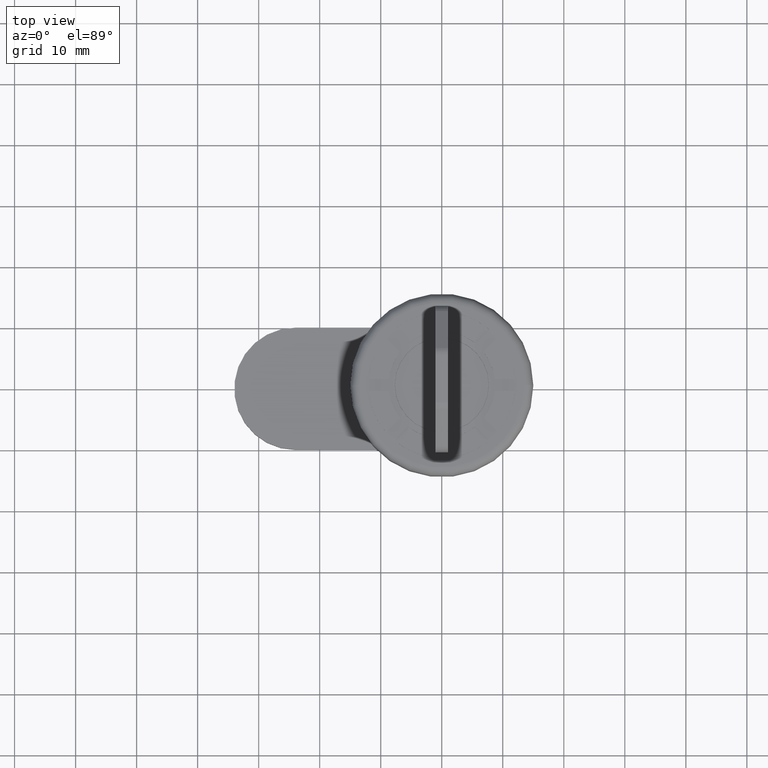
[diagram: clean part render]
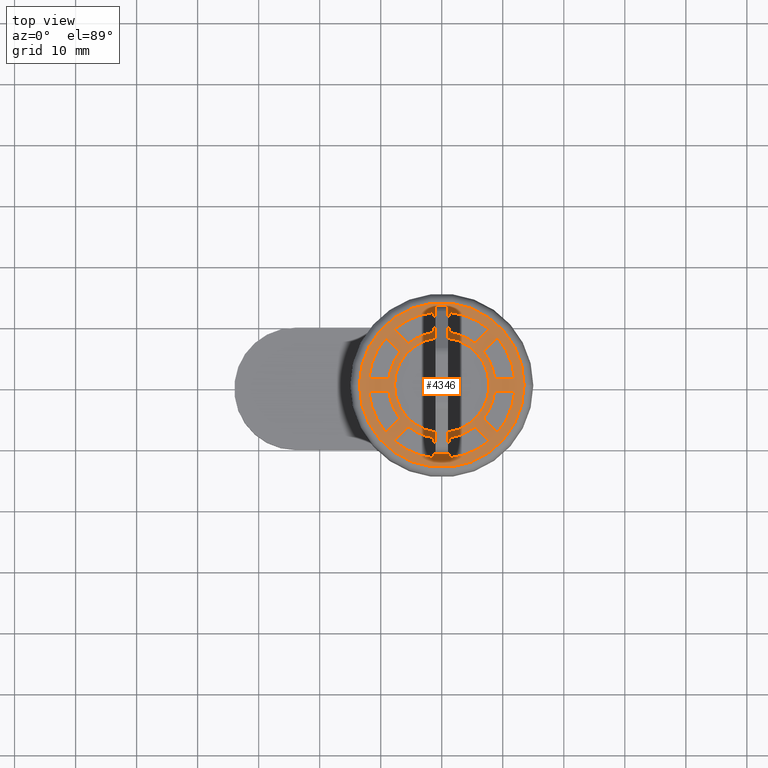
[diagram: same view with one face highlighted and labeled with its STEP entity id]
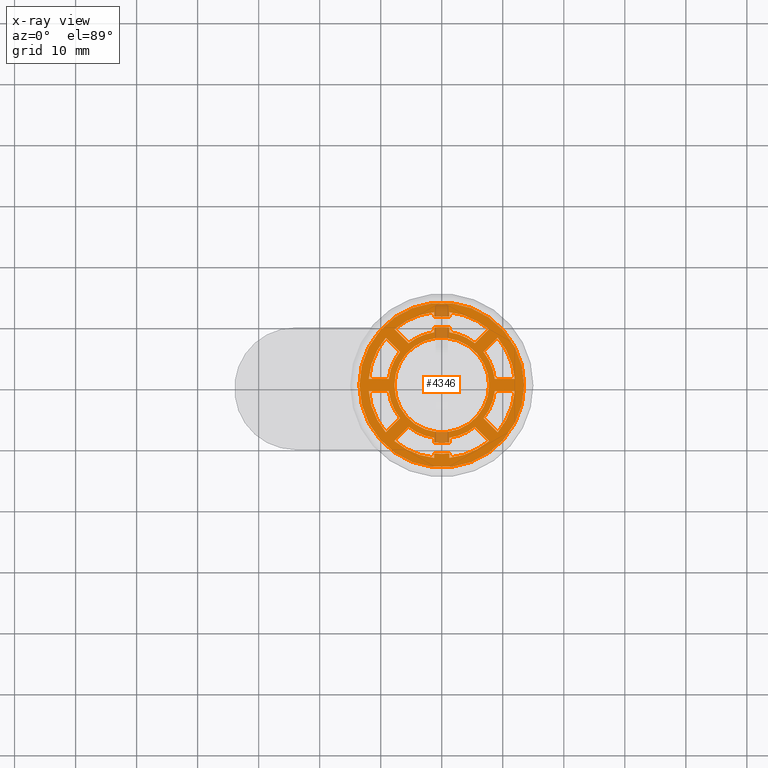
[diagram: x-ray of the same camera — body ghosted, the highlighted face saturated]
A machine part, top view. The second image highlights one B-rep face of the part: STEP entity #4346.
The next image is the same camera in x-ray: the body ghosted, the highlighted face saturated — about 5% of this face is hidden behind the body in this view.
In plain terms, the highlighted planar face has unit normal (0, 0, 1).
Its self-contained STEP definition (entity closure, byte-faithful):
#7 = EDGE_CURVE ( 'NONE', #2362, #4896, #3076, .T. ) ;
#23 = ORIENTED_EDGE ( 'NONE', *, *, #81, .T. ) ;
#39 = ORIENTED_EDGE ( 'NONE', *, *, #7615, .F. ) ;
#45 = VECTOR ( 'NONE', #4850, 1000.000000000000000 ) ;
#81 = EDGE_CURVE ( 'NONE', #3226, #7965, #4203, .T. ) ;
#108 = CARTESIAN_POINT ( 'NONE',  ( 0.0000000000000000000, 0.0000000000000000000, 0.0000000000000000000 ) ) ;
#220 = DIRECTION ( 'NONE',  ( 1.000000000000000000, 0.0000000000000000000, 0.0000000000000000000 ) ) ;
#246 = DIRECTION ( 'NONE',  ( 1.000000000000000000, 0.0000000000000000000, 0.0000000000000000000 ) ) ;
#257 = CARTESIAN_POINT ( 'NONE',  ( -9.162874043830470300, 7.748660481457288400, 0.0000000000000000000 ) ) ;
#259 = DIRECTION ( 'NONE',  ( 1.000000000000000000, 0.0000000000000000000, 0.0000000000000000000 ) ) ;
#335 = EDGE_CURVE ( 'NONE', #564, #2362, #6812, .T. ) ;
#337 = CARTESIAN_POINT ( 'NONE',  ( -5.439538645400386200, 6.853752207746949500, 0.0000000000000000000 ) ) ;
#354 = VERTEX_POINT ( 'NONE', #7953 ) ;
#403 = CARTESIAN_POINT ( 'NONE',  ( -1.250000000000220500, -9.417404100918672000, 0.0000000000000000000 ) ) ;
#407 = EDGE_CURVE ( 'NONE', #1545, #4889, #4716, .T. ) ;
#417 = DIRECTION ( 'NONE',  ( -0.0000000000000000000, -0.0000000000000000000, -1.000000000000000000 ) ) ;
#421 = CARTESIAN_POINT ( 'NONE',  ( 1.250000000000220900, 9.417404100918672000, 0.0000000000000000000 ) ) ;
#466 = ORIENTED_EDGE ( 'NONE', *, *, #3230, .F. ) ;
#481 = VERTEX_POINT ( 'NONE', #2942 ) ;
#499 = DIRECTION ( 'NONE',  ( 1.000000000000000000, 0.0000000000000000000, -0.0000000000000000000 ) ) ;
#512 = CARTESIAN_POINT ( 'NONE',  ( 6.853752207758702800, -5.439538645385539400, 0.0000000000000000000 ) ) ;
#513 = FACE_BOUND ( 'NONE', #5650, .T. ) ;
#519 = AXIS2_PLACEMENT_3D ( 'NONE', #3535, #7996, #4199 ) ;
#564 = VERTEX_POINT ( 'NONE', #4996 ) ;
#599 = CARTESIAN_POINT ( 'NONE',  ( 5.439538645397318500, 6.853752207749384000, 0.0000000000000000000 ) ) ;
#617 = CARTESIAN_POINT ( 'NONE',  ( -6.853752207758702800, 5.439538645385539400, 0.0000000000000000000 ) ) ;
#626 = AXIS2_PLACEMENT_3D ( 'NONE', #6406, #2547, #7046 ) ;
#660 = VERTEX_POINT ( 'NONE', #7856 ) ;
#673 = CARTESIAN_POINT ( 'NONE',  ( 8.692669325356856500, 1.000000000000000000, 0.0000000000000000000 ) ) ;
#692 = CARTESIAN_POINT ( 'NONE',  ( -5.439538645400388000, 6.853752207746948600, 0.0000000000000000000 ) ) ;
#696 = DIRECTION ( 'NONE',  ( 1.000000000000000000, 0.0000000000000000000, 0.0000000000000000000 ) ) ;
#721 = DIRECTION ( 'NONE',  ( 0.0000000000000000000, 0.0000000000000000000, 1.000000000000000000 ) ) ;
#726 = EDGE_LOOP ( 'NONE', ( #1582, #4842, #5305, #4109, #5555, #2654, #950, #1470, #7563, #7182, #2047, #6562 ) ) ;
#766 = DIRECTION ( 'NONE',  ( -1.000000000000000000, 0.0000000000000000000, 0.0000000000000000000 ) ) ;
#771 = VECTOR ( 'NONE', #5063, 1000.000000000000000 ) ;
#802 = DIRECTION ( 'NONE',  ( -0.0000000000000000000, -0.0000000000000000000, -1.000000000000000000 ) ) ;
#882 = ORIENTED_EDGE ( 'NONE', *, *, #7382, .F. ) ;
#896 = DIRECTION ( 'NONE',  ( 0.7071067811865505700, 0.7071067811865444600, 0.0000000000000000000 ) ) ;
#938 = DIRECTION ( 'NONE',  ( -0.0000000000000000000, 0.0000000000000000000, 1.000000000000000000 ) ) ;
#950 = ORIENTED_EDGE ( 'NONE', *, *, #407, .T. ) ;
#963 = VERTEX_POINT ( 'NONE', #617 ) ;
#968 = CIRCLE ( 'NONE', #2793, 8.750000000000026600 ) ;
#1013 = EDGE_CURVE ( 'NONE', #7587, #7680, #3887, .T. ) ;
#1030 = CARTESIAN_POINT ( 'NONE',  ( -1.250000000000220900, 9.417404100918672000, 0.0000000000000000000 ) ) ;
#1036 = CARTESIAN_POINT ( 'NONE',  ( -1.250000000000220300, -11.18033988750755000, 0.0000000000000000000 ) ) ;
#1051 = EDGE_CURVE ( 'NONE', #1561, #3437, #7091, .T. ) ;
#1064 = AXIS2_PLACEMENT_3D ( 'NONE', #1193, #5690, #1827 ) ;
#1084 = EDGE_LOOP ( 'NONE', ( #3544, #7256 ) ) ;
#1089 = VERTEX_POINT ( 'NONE', #5022 ) ;
#1096 = CARTESIAN_POINT ( 'NONE',  ( -1.250000000000220900, -9.417404100918672000, 0.0000000000000000000 ) ) ;
#1153 = LINE ( 'NONE', #6663, #7749 ) ;
#1170 = ORIENTED_EDGE ( 'NONE', *, *, #5893, .T. ) ;
#1193 = CARTESIAN_POINT ( 'NONE',  ( 0.0000000000000000000, 0.0000000000000000000, 0.0000000000000000000 ) ) ;
#1215 = VECTOR ( 'NONE', #5749, 1000.000000000000000 ) ;
#1238 = AXIS2_PLACEMENT_3D ( 'NONE', #6567, #2078, #5931 ) ;
#1241 = CARTESIAN_POINT ( 'NONE',  ( -7.748660481471918400, 9.162874043818481700, 0.0000000000000000000 ) ) ;
#1249 = EDGE_CURVE ( 'NONE', #4781, #2544, #3579, .T. ) ;
#1276 = ORIENTED_EDGE ( 'NONE', *, *, #4709, .T. ) ;
#1288 = LINE ( 'NONE', #1780, #6026 ) ;
#1303 = VECTOR ( 'NONE', #4767, 1000.000000000000200 ) ;
#1313 = EDGE_CURVE ( 'NONE', #7965, #6688, #3167, .T. ) ;
#1339 = VECTOR ( 'NONE', #1695, 1000.000000000000100 ) ;
#1341 = CARTESIAN_POINT ( 'NONE',  ( 9.162874043830470300, 7.748660481457288400, 0.0000000000000000000 ) ) ;
#1348 = AXIS2_PLACEMENT_3D ( 'NONE', #1577, #3480, #220 ) ;
#1399 = CARTESIAN_POINT ( 'NONE',  ( 5.439538645397318500, -6.853752207749384000, 0.0000000000000000000 ) ) ;
#1400 = AXIS2_PLACEMENT_3D ( 'NONE', #2432, #6285, #5651 ) ;
#1452 = LINE ( 'NONE', #599, #4477 ) ;
#1470 = ORIENTED_EDGE ( 'NONE', *, *, #1532, .T. ) ;
#1485 = EDGE_CURVE ( 'NONE', #660, #4781, #1760, .T. ) ;
#1532 = EDGE_CURVE ( 'NONE', #4889, #3322, #968, .T. ) ;
#1545 = VERTEX_POINT ( 'NONE', #7307 ) ;
#1561 = VERTEX_POINT ( 'NONE', #7869 ) ;
#1570 = ORIENTED_EDGE ( 'NONE', *, *, #6563, .T. ) ;
#1577 = CARTESIAN_POINT ( 'NONE',  ( 0.0000000000000000000, 0.0000000000000000000, 0.0000000000000000000 ) ) ;
#1582 = ORIENTED_EDGE ( 'NONE', *, *, #6342, .T. ) ;
#1644 = EDGE_CURVE ( 'NONE', #2389, #660, #1853, .T. ) ;
#1654 = CIRCLE ( 'NONE', #5932, 12.00000000000029500 ) ;
#1695 = DIRECTION ( 'NONE',  ( 0.7071067811865474600, -0.7071067811865474600, -0.0000000000000000000 ) ) ;
#1725 = EDGE_CURVE ( 'NONE', #3385, #5760, #4685, .T. ) ;
#1753 = CARTESIAN_POINT ( 'NONE',  ( 8.692669325356856500, -1.000000000000000000, 0.0000000000000000000 ) ) ;
#1760 = LINE ( 'NONE', #3541, #45 ) ;
#1780 = CARTESIAN_POINT ( 'NONE',  ( -8.692669325356856500, -1.000000000000000000, 0.0000000000000000000 ) ) ;
#1790 = EDGE_CURVE ( 'NONE', #1089, #4126, #4285, .T. ) ;
#1817 = AXIS2_PLACEMENT_3D ( 'NONE', #4272, #417, #4930 ) ;
#1827 = DIRECTION ( 'NONE',  ( 1.000000000000000000, 0.0000000000000000000, 0.0000000000000000000 ) ) ;
#1853 = CIRCLE ( 'NONE', #4119, 9.500000000000019500 ) ;
#1861 = CARTESIAN_POINT ( 'NONE',  ( -8.692669325356856500, 1.000000000000000000, 0.0000000000000000000 ) ) ;
#1881 = EDGE_CURVE ( 'NONE', #7479, #2411, #3457, .T. ) ;
#1882 = EDGE_LOOP ( 'NONE', ( #8148, #8188 ) ) ;
#1913 = VERTEX_POINT ( 'NONE', #4802 ) ;
#1946 = EDGE_CURVE ( 'NONE', #6067, #4615, #1153, .T. ) ;
#1948 = LINE ( 'NONE', #1341, #7076 ) ;
#1972 = ORIENTED_EDGE ( 'NONE', *, *, #2399, .T. ) ;
#1994 = DIRECTION ( 'NONE',  ( -0.0000000000000000000, -0.0000000000000000000, -1.000000000000000000 ) ) ;
#2005 = FACE_BOUND ( 'NONE', #726, .T. ) ;
#2022 = CARTESIAN_POINT ( 'NONE',  ( -13.50000000000000000, 1.745121688784978200E-015, 0.0000000000000000000 ) ) ;
#2047 = ORIENTED_EDGE ( 'NONE', *, *, #1485, .T. ) ;
#2078 = DIRECTION ( 'NONE',  ( 0.0000000000000000000, -0.0000000000000000000, 1.000000000000000000 ) ) ;
#2095 = CARTESIAN_POINT ( 'NONE',  ( 0.0000000000000000000, 0.0000000000000000000, 0.0000000000000000000 ) ) ;
#2099 = CARTESIAN_POINT ( 'NONE',  ( -9.162874043830470300, -7.748660481457288400, 0.0000000000000000000 ) ) ;
#2114 = EDGE_CURVE ( 'NONE', #7737, #6067, #1654, .T. ) ;
#2129 = VERTEX_POINT ( 'NONE', #4957 ) ;
#2139 = CARTESIAN_POINT ( 'NONE',  ( 8.692669325356856500, -1.000000000000000000, 0.0000000000000000000 ) ) ;
#2201 = CARTESIAN_POINT ( 'NONE',  ( -9.162874043830470300, -7.748660481457288400, 0.0000000000000000000 ) ) ;
#2203 = VERTEX_POINT ( 'NONE', #5281 ) ;
#2210 = FACE_OUTER_BOUND ( 'NONE', #1882, .T. ) ;
#2212 = CARTESIAN_POINT ( 'NONE',  ( -1.250000000000220300, 11.18033988750755000, 0.0000000000000000000 ) ) ;
#2256 = ORIENTED_EDGE ( 'NONE', *, *, #3881, .F. ) ;
#2260 = CARTESIAN_POINT ( 'NONE',  ( -1.250000000000220900, -8.660254037844382000, 0.0000000000000000000 ) ) ;
#2270 = DIRECTION ( 'NONE',  ( -0.0000000000000000000, -0.0000000000000000000, -1.000000000000000000 ) ) ;
#2304 = CARTESIAN_POINT ( 'NONE',  ( -1.250000000000220900, 8.660254037844382000, 0.0000000000000000000 ) ) ;
#2362 = VERTEX_POINT ( 'NONE', #6072 ) ;
#2374 = CARTESIAN_POINT ( 'NONE',  ( 0.0000000000000000000, 0.0000000000000000000, 0.0000000000000000000 ) ) ;
#2376 = DIRECTION ( 'NONE',  ( -0.0000000000000000000, -0.0000000000000000000, -1.000000000000000000 ) ) ;
#2389 = VERTEX_POINT ( 'NONE', #403 ) ;
#2392 = EDGE_CURVE ( 'NONE', #4459, #4526, #4778, .T. ) ;
#2398 = CARTESIAN_POINT ( 'NONE',  ( 0.0000000000000000000, 0.0000000000000000000, 0.0000000000000000000 ) ) ;
#2399 = EDGE_CURVE ( 'NONE', #7644, #2493, #6457, .T. ) ;
#2411 = VERTEX_POINT ( 'NONE', #6828 ) ;
#2432 = CARTESIAN_POINT ( 'NONE',  ( 0.0000000000000000000, 0.0000000000000000000, 0.0000000000000000000 ) ) ;
#2465 = AXIS2_PLACEMENT_3D ( 'NONE', #6893, #4359, #499 ) ;
#2482 = CIRCLE ( 'NONE', #4230, 8.750000000000000000 ) ;
#2493 = VERTEX_POINT ( 'NONE', #512 ) ;
#2502 = CARTESIAN_POINT ( 'NONE',  ( -9.162874043830470300, 7.748660481457288400, 0.0000000000000000000 ) ) ;
#2505 = CARTESIAN_POINT ( 'NONE',  ( 0.0000000000000000000, 0.0000000000000000000, 0.0000000000000000000 ) ) ;
#2519 = AXIS2_PLACEMENT_3D ( 'NONE', #8163, #2270, #8109 ) ;
#2534 = ORIENTED_EDGE ( 'NONE', *, *, #8102, .T. ) ;
#2540 = CARTESIAN_POINT ( 'NONE',  ( 0.0000000000000000000, 0.0000000000000000000, 0.0000000000000000000 ) ) ;
#2544 = VERTEX_POINT ( 'NONE', #5071 ) ;
#2547 = DIRECTION ( 'NONE',  ( 0.0000000000000000000, 0.0000000000000000000, 1.000000000000000000 ) ) ;
#2583 = ORIENTED_EDGE ( 'NONE', *, *, #4071, .F. ) ;
#2610 = VERTEX_POINT ( 'NONE', #3198 ) ;
#2654 = ORIENTED_EDGE ( 'NONE', *, *, #3394, .T. ) ;
#2725 = DIRECTION ( 'NONE',  ( 1.000000000000000000, 0.0000000000000000000, 0.0000000000000000000 ) ) ;
#2752 = DIRECTION ( 'NONE',  ( -0.0000000000000000000, -0.0000000000000000000, -1.000000000000000000 ) ) ;
#2769 = VECTOR ( 'NONE', #6581, 1000.000000000000000 ) ;
#2793 = AXIS2_PLACEMENT_3D ( 'NONE', #7218, #6668, #7790 ) ;
#2928 = CARTESIAN_POINT ( 'NONE',  ( -1.250000000000220300, 11.93471826228028500, 0.0000000000000000000 ) ) ;
#2942 = CARTESIAN_POINT ( 'NONE',  ( 5.439538645397318500, 6.853752207749384000, 0.0000000000000000000 ) ) ;
#2954 = DIRECTION ( 'NONE',  ( 0.0000000000000000000, 0.0000000000000000000, 1.000000000000000000 ) ) ;
#2984 = EDGE_CURVE ( 'NONE', #4615, #7587, #7147, .T. ) ;
#2992 = LINE ( 'NONE', #1096, #8295 ) ;
#3016 = LINE ( 'NONE', #421, #6045 ) ;
#3027 = CIRCLE ( 'NONE', #1817, 8.750000000000026600 ) ;
#3030 = DIRECTION ( 'NONE',  ( -1.000000000000000000, 0.0000000000000000000, 0.0000000000000000000 ) ) ;
#3036 = PLANE ( 'NONE',  #2465 ) ;
#3076 = LINE ( 'NONE', #1036, #4599 ) ;
#3104 = AXIS2_PLACEMENT_3D ( 'NONE', #6234, #2376, #6869 ) ;
#3124 = VERTEX_POINT ( 'NONE', #7172 ) ;
#3131 = DIRECTION ( 'NONE',  ( 0.0000000000000000000, 1.000000000000000000, 0.0000000000000000000 ) ) ;
#3150 = DIRECTION ( 'NONE',  ( 1.000000000000000000, 0.0000000000000000000, 0.0000000000000000000 ) ) ;
#3167 = CIRCLE ( 'NONE', #2519, 12.00000000000000000 ) ;
#3170 = DIRECTION ( 'NONE',  ( 0.7071067811865469100, 0.7071067811865482400, 0.0000000000000000000 ) ) ;
#3187 = AXIS2_PLACEMENT_3D ( 'NONE', #4797, #938, #5440 ) ;
#3189 = CIRCLE ( 'NONE', #3187, 8.750000000000000000 ) ;
#3192 = EDGE_CURVE ( 'NONE', #5760, #3385, #5751, .T. ) ;
#3198 = CARTESIAN_POINT ( 'NONE',  ( 1.250000000000221800, 8.660254037844382000, 0.0000000000000000000 ) ) ;
#3199 = DIRECTION ( 'NONE',  ( 1.000000000000000000, 0.0000000000000000000, 0.0000000000000000000 ) ) ;
#3226 = VERTEX_POINT ( 'NONE', #4732 ) ;
#3230 = EDGE_CURVE ( 'NONE', #7680, #4459, #7049, .T. ) ;
#3322 = VERTEX_POINT ( 'NONE', #2260 ) ;
#3342 = CARTESIAN_POINT ( 'NONE',  ( 7.748660481468934200, 9.162874043821004100, 0.0000000000000000000 ) ) ;
#3352 = EDGE_CURVE ( 'NONE', #2610, #481, #3027, .T. ) ;
#3380 = CARTESIAN_POINT ( 'NONE',  ( 1.250000000000219800, -11.18033988750755000, 0.0000000000000000000 ) ) ;
#3382 = ORIENTED_EDGE ( 'NONE', *, *, #5735, .F. ) ;
#3385 = VERTEX_POINT ( 'NONE', #4307 ) ;
#3394 = EDGE_CURVE ( 'NONE', #4896, #1545, #4363, .T. ) ;
#3437 = VERTEX_POINT ( 'NONE', #4336 ) ;
#3457 = LINE ( 'NONE', #2201, #5183 ) ;
#3480 = DIRECTION ( 'NONE',  ( -0.0000000000000000000, -0.0000000000000000000, -1.000000000000000000 ) ) ;
#3520 = CARTESIAN_POINT ( 'NONE',  ( 1.250000000000221800, -8.660254037844382000, 0.0000000000000000000 ) ) ;
#3530 = EDGE_CURVE ( 'NONE', #3437, #1561, #7342, .T. ) ;
#3535 = CARTESIAN_POINT ( 'NONE',  ( 0.0000000000000000000, 0.0000000000000000000, 0.0000000000000000000 ) ) ;
#3541 = CARTESIAN_POINT ( 'NONE',  ( 1.250000000000220900, -9.417404100918672000, 0.0000000000000000000 ) ) ;
#3544 = ORIENTED_EDGE ( 'NONE', *, *, #3530, .F. ) ;
#3579 = CIRCLE ( 'NONE', #1238, 8.750000000000026600 ) ;
#3589 = VECTOR ( 'NONE', #5262, 1000.000000000000000 ) ;
#3626 = CARTESIAN_POINT ( 'NONE',  ( -1.250000000000220300, -11.93471826228028500, 0.0000000000000000000 ) ) ;
#3732 = FACE_BOUND ( 'NONE', #6002, .T. ) ;
#3759 = CIRCLE ( 'NONE', #7639, 12.00000000000000000 ) ;
#3766 = CIRCLE ( 'NONE', #519, 8.750000000000026600 ) ;
#3787 = AXIS2_PLACEMENT_3D ( 'NONE', #5849, #1994, #6487 ) ;
#3881 = EDGE_CURVE ( 'NONE', #3124, #2610, #3016, .T. ) ;
#3887 = LINE ( 'NONE', #7696, #5402 ) ;
#3965 = CARTESIAN_POINT ( 'NONE',  ( -1.250000000000220500, 9.417404100918672000, 0.0000000000000000000 ) ) ;
#4008 = CIRCLE ( 'NONE', #5934, 12.00000000000029500 ) ;
#4015 = DIRECTION ( 'NONE',  ( 1.000000000000000000, 0.0000000000000000000, 0.0000000000000000000 ) ) ;
#4039 = CARTESIAN_POINT ( 'NONE',  ( 0.0000000000000000000, 0.0000000000000000000, 0.0000000000000000000 ) ) ;
#4071 = EDGE_CURVE ( 'NONE', #4126, #8013, #8214, .T. ) ;
#4107 = DIRECTION ( 'NONE',  ( 0.0000000000000000000, -0.0000000000000000000, 1.000000000000000000 ) ) ;
#4109 = ORIENTED_EDGE ( 'NONE', *, *, #335, .T. ) ;
#4117 = DIRECTION ( 'NONE',  ( 0.0000000000000000000, 0.0000000000000000000, 1.000000000000000000 ) ) ;
#4119 = AXIS2_PLACEMENT_3D ( 'NONE', #4039, #4107, #4015 ) ;
#4126 = VERTEX_POINT ( 'NONE', #673 ) ;
#4131 = DIRECTION ( 'NONE',  ( -0.0000000000000000000, -0.0000000000000000000, -1.000000000000000000 ) ) ;
#4167 = VECTOR ( 'NONE', #5535, 1000.000000000000000 ) ;
#4199 = DIRECTION ( 'NONE',  ( 1.000000000000000000, 0.0000000000000000000, 0.0000000000000000000 ) ) ;
#4203 = LINE ( 'NONE', #1861, #771 ) ;
#4230 = AXIS2_PLACEMENT_3D ( 'NONE', #108, #4628, #766 ) ;
#4272 = CARTESIAN_POINT ( 'NONE',  ( 0.0000000000000000000, 0.0000000000000000000, 0.0000000000000000000 ) ) ;
#4285 = CIRCLE ( 'NONE', #1348, 8.750000000000000000 ) ;
#4307 = CARTESIAN_POINT ( 'NONE',  ( 13.50000000000000000, 0.0000000000000000000, 0.0000000000000000000 ) ) ;
#4336 = CARTESIAN_POINT ( 'NONE',  ( 7.750000000000000000, 0.0000000000000000000, 0.0000000000000000000 ) ) ;
#4346 = ADVANCED_FACE ( 'NONE', ( #7328, #5645, #2210, #513, #7129, #5444, #3732, #2005 ), #3036, .T. ) ;
#4359 = DIRECTION ( 'NONE',  ( 0.0000000000000000000, 0.0000000000000000000, 1.000000000000000000 ) ) ;
#4363 = CIRCLE ( 'NONE', #3104, 12.00000000000029500 ) ;
#4377 = LINE ( 'NONE', #1030, #4167 ) ;
#4443 = ORIENTED_EDGE ( 'NONE', *, *, #1313, .T. ) ;
#4453 = ORIENTED_EDGE ( 'NONE', *, *, #2114, .F. ) ;
#4459 = VERTEX_POINT ( 'NONE', #1241 ) ;
#4477 = VECTOR ( 'NONE', #3170, 1000.000000000000000 ) ;
#4526 = VERTEX_POINT ( 'NONE', #692 ) ;
#4588 = DIRECTION ( 'NONE',  ( -0.7071067811865505700, -0.7071067811865444600, 0.0000000000000000000 ) ) ;
#4599 = VECTOR ( 'NONE', #6163, 1000.000000000000000 ) ;
#4615 = VERTEX_POINT ( 'NONE', #4652 ) ;
#4617 = CIRCLE ( 'NONE', #3787, 9.500000000000019500 ) ;
#4628 = DIRECTION ( 'NONE',  ( 0.0000000000000000000, 0.0000000000000000000, -1.000000000000000000 ) ) ;
#4650 = CARTESIAN_POINT ( 'NONE',  ( 0.0000000000000000000, 0.0000000000000000000, 0.0000000000000000000 ) ) ;
#4652 = CARTESIAN_POINT ( 'NONE',  ( 1.250000000000220700, 11.18033988750755000, 0.0000000000000000000 ) ) ;
#4685 = CIRCLE ( 'NONE', #7933, 13.50000000000000000 ) ;
#4688 = CARTESIAN_POINT ( 'NONE',  ( 0.0000000000000000000, 0.0000000000000000000, 0.0000000000000000000 ) ) ;
#4709 = EDGE_CURVE ( 'NONE', #6688, #963, #7707, .T. ) ;
#4716 = LINE ( 'NONE', #4832, #7879 ) ;
#4732 = CARTESIAN_POINT ( 'NONE',  ( -8.692669325356856500, 1.000000000000000000, 0.0000000000000000000 ) ) ;
#4767 = DIRECTION ( 'NONE',  ( 0.7071067811865505700, -0.7071067811865444600, 0.0000000000000000000 ) ) ;
#4778 = LINE ( 'NONE', #337, #1339 ) ;
#4781 = VERTEX_POINT ( 'NONE', #3520 ) ;
#4797 = CARTESIAN_POINT ( 'NONE',  ( 0.0000000000000000000, 0.0000000000000000000, 0.0000000000000000000 ) ) ;
#4802 = CARTESIAN_POINT ( 'NONE',  ( 7.748660481468934200, -9.162874043821004100, 0.0000000000000000000 ) ) ;
#4806 = LINE ( 'NONE', #1753, #7969 ) ;
#4832 = CARTESIAN_POINT ( 'NONE',  ( -5.439538645400386200, -6.853752207746949500, 0.0000000000000000000 ) ) ;
#4842 = ORIENTED_EDGE ( 'NONE', *, *, #5764, .T. ) ;
#4850 = DIRECTION ( 'NONE',  ( 0.0000000000000000000, 1.000000000000000000, 0.0000000000000000000 ) ) ;
#4889 = VERTEX_POINT ( 'NONE', #6854 ) ;
#4896 = VERTEX_POINT ( 'NONE', #3626 ) ;
#4906 = CARTESIAN_POINT ( 'NONE',  ( 9.162874043830470300, -7.748660481457288400, 0.0000000000000000000 ) ) ;
#4930 = DIRECTION ( 'NONE',  ( 1.000000000000000000, 0.0000000000000000000, 0.0000000000000000000 ) ) ;
#4957 = CARTESIAN_POINT ( 'NONE',  ( -11.95826074310139800, -1.000000000000000000, 0.0000000000000000000 ) ) ;
#4959 = ORIENTED_EDGE ( 'NONE', *, *, #3352, .F. ) ;
#4983 = VECTOR ( 'NONE', #6180, 1000.000000000000200 ) ;
#4996 = CARTESIAN_POINT ( 'NONE',  ( 1.250000000000220700, -11.18033988750755000, 0.0000000000000000000 ) ) ;
#5016 = ORIENTED_EDGE ( 'NONE', *, *, #7263, .F. ) ;
#5019 = EDGE_LOOP ( 'NONE', ( #882, #5481, #2583, #6767 ) ) ;
#5022 = CARTESIAN_POINT ( 'NONE',  ( 6.853752207758700100, 5.439538645385539400, 0.0000000000000000000 ) ) ;
#5063 = DIRECTION ( 'NONE',  ( -1.000000000000000000, 0.0000000000000000000, 0.0000000000000000000 ) ) ;
#5071 = CARTESIAN_POINT ( 'NONE',  ( 5.439538645397318500, -6.853752207749384000, 0.0000000000000000000 ) ) ;
#5183 = VECTOR ( 'NONE', #896, 1000.000000000000200 ) ;
#5238 = ORIENTED_EDGE ( 'NONE', *, *, #6418, .T. ) ;
#5262 = DIRECTION ( 'NONE',  ( 0.7071067811865469100, -0.7071067811865482400, 0.0000000000000000000 ) ) ;
#5270 = CIRCLE ( 'NONE', #1064, 8.750000000000000000 ) ;
#5281 = CARTESIAN_POINT ( 'NONE',  ( -8.692669325356856500, -1.000000000000000000, 0.0000000000000000000 ) ) ;
#5298 = DIRECTION ( 'NONE',  ( 1.000000000000000000, 0.0000000000000000000, 0.0000000000000000000 ) ) ;
#5305 = ORIENTED_EDGE ( 'NONE', *, *, #6414, .T. ) ;
#5400 = ORIENTED_EDGE ( 'NONE', *, *, #8036, .F. ) ;
#5402 = VECTOR ( 'NONE', #3131, 1000.000000000000000 ) ;
#5424 = EDGE_CURVE ( 'NONE', #3322, #2389, #2992, .T. ) ;
#5440 = DIRECTION ( 'NONE',  ( -1.000000000000000000, 0.0000000000000000000, 0.0000000000000000000 ) ) ;
#5444 = FACE_BOUND ( 'NONE', #1084, .T. ) ;
#5481 = ORIENTED_EDGE ( 'NONE', *, *, #8169, .F. ) ;
#5508 = EDGE_CURVE ( 'NONE', #2203, #2129, #1288, .T. ) ;
#5510 = VERTEX_POINT ( 'NONE', #5643 ) ;
#5519 = CARTESIAN_POINT ( 'NONE',  ( 9.162874043830470300, -7.748660481457288400, 0.0000000000000000000 ) ) ;
#5535 = DIRECTION ( 'NONE',  ( -0.0000000000000000000, 1.000000000000000000, -0.0000000000000000000 ) ) ;
#5555 = ORIENTED_EDGE ( 'NONE', *, *, #7, .T. ) ;
#5588 = DIRECTION ( 'NONE',  ( 0.0000000000000000000, -1.000000000000000000, 0.0000000000000000000 ) ) ;
#5633 = CARTESIAN_POINT ( 'NONE',  ( 1.250000000000219800, 11.93471826228028500, 0.0000000000000000000 ) ) ;
#5643 = CARTESIAN_POINT ( 'NONE',  ( 9.162874043830470300, 7.748660481457288400, 0.0000000000000000000 ) ) ;
#5645 = FACE_BOUND ( 'NONE', #5019, .T. ) ;
#5650 = EDGE_LOOP ( 'NONE', ( #5238, #1972, #2534, #1570 ) ) ;
#5651 = DIRECTION ( 'NONE',  ( 1.000000000000000000, 0.0000000000000000000, 0.0000000000000000000 ) ) ;
#5663 = ORIENTED_EDGE ( 'NONE', *, *, #1881, .F. ) ;
#5682 = EDGE_CURVE ( 'NONE', #8302, #3124, #4617, .T. ) ;
#5690 = DIRECTION ( 'NONE',  ( 0.0000000000000000000, -0.0000000000000000000, 1.000000000000000000 ) ) ;
#5735 = EDGE_CURVE ( 'NONE', #2411, #2203, #2482, .T. ) ;
#5749 = DIRECTION ( 'NONE',  ( 1.000000000000000000, 0.0000000000000000000, 0.0000000000000000000 ) ) ;
#5751 = CIRCLE ( 'NONE', #7013, 13.50000000000000000 ) ;
#5760 = VERTEX_POINT ( 'NONE', #2022 ) ;
#5764 = EDGE_CURVE ( 'NONE', #1913, #354, #4008, .T. ) ;
#5766 = ORIENTED_EDGE ( 'NONE', *, *, #5682, .F. ) ;
#5849 = CARTESIAN_POINT ( 'NONE',  ( 0.0000000000000000000, 0.0000000000000000000, 0.0000000000000000000 ) ) ;
#5893 = EDGE_CURVE ( 'NONE', #963, #3226, #3189, .T. ) ;
#5931 = DIRECTION ( 'NONE',  ( 1.000000000000000000, 0.0000000000000000000, 0.0000000000000000000 ) ) ;
#5932 = AXIS2_PLACEMENT_3D ( 'NONE', #2374, #2954, #6201 ) ;
#5934 = AXIS2_PLACEMENT_3D ( 'NONE', #4650, #802, #5298 ) ;
#5968 = CIRCLE ( 'NONE', #626, 12.00000000000000000 ) ;
#5974 = ORIENTED_EDGE ( 'NONE', *, *, #7952, .F. ) ;
#5989 = ORIENTED_EDGE ( 'NONE', *, *, #1946, .F. ) ;
#6002 = EDGE_LOOP ( 'NONE', ( #4453, #5016, #4959, #2256, #5766, #5974, #39, #8191, #466, #7607, #7111, #5989 ) ) ;
#6026 = VECTOR ( 'NONE', #6275, 1000.000000000000000 ) ;
#6045 = VECTOR ( 'NONE', #6848, 1000.000000000000000 ) ;
#6067 = VERTEX_POINT ( 'NONE', #5633 ) ;
#6072 = CARTESIAN_POINT ( 'NONE',  ( -1.250000000000220300, -11.18033988750755000, 0.0000000000000000000 ) ) ;
#6163 = DIRECTION ( 'NONE',  ( 0.0000000000000000000, -1.000000000000000000, 0.0000000000000000000 ) ) ;
#6180 = DIRECTION ( 'NONE',  ( -0.7071067811865505700, 0.7071067811865444600, 0.0000000000000000000 ) ) ;
#6200 = LINE ( 'NONE', #3380, #2769 ) ;
#6201 = DIRECTION ( 'NONE',  ( 1.000000000000000000, 0.0000000000000000000, 0.0000000000000000000 ) ) ;
#6234 = CARTESIAN_POINT ( 'NONE',  ( 0.0000000000000000000, 0.0000000000000000000, 0.0000000000000000000 ) ) ;
#6275 = DIRECTION ( 'NONE',  ( -1.000000000000000000, 0.0000000000000000000, 0.0000000000000000000 ) ) ;
#6285 = DIRECTION ( 'NONE',  ( 0.0000000000000000000, 0.0000000000000000000, 1.000000000000000000 ) ) ;
#6300 = CARTESIAN_POINT ( 'NONE',  ( 11.95826074310139800, -1.000000000000000000, 0.0000000000000000000 ) ) ;
#6342 = EDGE_CURVE ( 'NONE', #2544, #1913, #6802, .T. ) ;
#6390 = CARTESIAN_POINT ( 'NONE',  ( 8.692669325356856500, 1.000000000000000000, 0.0000000000000000000 ) ) ;
#6406 = CARTESIAN_POINT ( 'NONE',  ( 0.0000000000000000000, 0.0000000000000000000, 0.0000000000000000000 ) ) ;
#6414 = EDGE_CURVE ( 'NONE', #354, #564, #6200, .T. ) ;
#6418 = EDGE_CURVE ( 'NONE', #8089, #7644, #7674, .T. ) ;
#6441 = VERTEX_POINT ( 'NONE', #2139 ) ;
#6457 = LINE ( 'NONE', #4906, #4983 ) ;
#6487 = DIRECTION ( 'NONE',  ( 1.000000000000000000, 0.0000000000000000000, 0.0000000000000000000 ) ) ;
#6562 = ORIENTED_EDGE ( 'NONE', *, *, #1249, .T. ) ;
#6563 = EDGE_CURVE ( 'NONE', #6441, #8089, #4806, .T. ) ;
#6567 = CARTESIAN_POINT ( 'NONE',  ( 0.0000000000000000000, 0.0000000000000000000, 0.0000000000000000000 ) ) ;
#6581 = DIRECTION ( 'NONE',  ( -0.0000000000000000000, 1.000000000000000000, -0.0000000000000000000 ) ) ;
#6590 = DIRECTION ( 'NONE',  ( 0.0000000000000000000, 0.0000000000000000000, 1.000000000000000000 ) ) ;
#6611 = CARTESIAN_POINT ( 'NONE',  ( 0.0000000000000000000, 0.0000000000000000000, 0.0000000000000000000 ) ) ;
#6636 = DIRECTION ( 'NONE',  ( -0.0000000000000000000, -1.000000000000000000, -0.0000000000000000000 ) ) ;
#6663 = CARTESIAN_POINT ( 'NONE',  ( 1.250000000000219800, 11.18033988750755000, 0.0000000000000000000 ) ) ;
#6668 = DIRECTION ( 'NONE',  ( 0.0000000000000000000, -0.0000000000000000000, 1.000000000000000000 ) ) ;
#6688 = VERTEX_POINT ( 'NONE', #2502 ) ;
#6767 = ORIENTED_EDGE ( 'NONE', *, *, #1790, .F. ) ;
#6802 = LINE ( 'NONE', #1399, #3589 ) ;
#6809 = CARTESIAN_POINT ( 'NONE',  ( -11.95826074310139800, 1.000000000000000000, 0.0000000000000000000 ) ) ;
#6812 = CIRCLE ( 'NONE', #7612, 11.25000000000857300 ) ;
#6828 = CARTESIAN_POINT ( 'NONE',  ( -6.853752207758700100, -5.439538645385539400, 0.0000000000000000000 ) ) ;
#6848 = DIRECTION ( 'NONE',  ( 0.0000000000000000000, -1.000000000000000000, 0.0000000000000000000 ) ) ;
#6854 = CARTESIAN_POINT ( 'NONE',  ( -5.439538645400388000, -6.853752207746948600, 0.0000000000000000000 ) ) ;
#6859 = CARTESIAN_POINT ( 'NONE',  ( 11.95826074310139800, 1.000000000000000000, 0.0000000000000000000 ) ) ;
#6869 = DIRECTION ( 'NONE',  ( 1.000000000000000000, 0.0000000000000000000, 0.0000000000000000000 ) ) ;
#6890 = DIRECTION ( 'NONE',  ( 0.0000000000000000000, 0.0000000000000000000, 1.000000000000000000 ) ) ;
#6893 = CARTESIAN_POINT ( 'NONE',  ( 0.0000000000000000000, 0.0000000000000000000, 0.0000000000000000000 ) ) ;
#6898 = DIRECTION ( 'NONE',  ( 1.000000000000000000, 0.0000000000000000000, 0.0000000000000000000 ) ) ;
#6987 = AXIS2_PLACEMENT_3D ( 'NONE', #2505, #7011, #3150 ) ;
#7011 = DIRECTION ( 'NONE',  ( 0.0000000000000000000, 0.0000000000000000000, 1.000000000000000000 ) ) ;
#7013 = AXIS2_PLACEMENT_3D ( 'NONE', #2095, #6590, #2725 ) ;
#7040 = DIRECTION ( 'NONE',  ( 0.0000000000000000000, 0.0000000000000000000, 1.000000000000000000 ) ) ;
#7046 = DIRECTION ( 'NONE',  ( 1.000000000000000000, 0.0000000000000000000, 0.0000000000000000000 ) ) ;
#7049 = CIRCLE ( 'NONE', #8267, 12.00000000000029500 ) ;
#7060 = AXIS2_PLACEMENT_3D ( 'NONE', #6611, #2752, #7246 ) ;
#7076 = VECTOR ( 'NONE', #4588, 1000.000000000000200 ) ;
#7087 = VERTEX_POINT ( 'NONE', #2304 ) ;
#7091 = CIRCLE ( 'NONE', #1400, 7.750000000000000000 ) ;
#7111 = ORIENTED_EDGE ( 'NONE', *, *, #2984, .F. ) ;
#7129 = FACE_BOUND ( 'NONE', #7305, .T. ) ;
#7147 = CIRCLE ( 'NONE', #8002, 11.25000000000857300 ) ;
#7172 = CARTESIAN_POINT ( 'NONE',  ( 1.250000000000220900, 9.417404100918672000, 0.0000000000000000000 ) ) ;
#7182 = ORIENTED_EDGE ( 'NONE', *, *, #1644, .T. ) ;
#7218 = CARTESIAN_POINT ( 'NONE',  ( 0.0000000000000000000, 0.0000000000000000000, 0.0000000000000000000 ) ) ;
#7246 = DIRECTION ( 'NONE',  ( 1.000000000000000000, 0.0000000000000000000, 0.0000000000000000000 ) ) ;
#7256 = ORIENTED_EDGE ( 'NONE', *, *, #1051, .F. ) ;
#7263 = EDGE_CURVE ( 'NONE', #481, #7737, #1452, .T. ) ;
#7305 = EDGE_LOOP ( 'NONE', ( #4443, #1276, #1170, #23 ) ) ;
#7307 = CARTESIAN_POINT ( 'NONE',  ( -7.748660481471918400, -9.162874043818481700, 0.0000000000000000000 ) ) ;
#7328 = FACE_BOUND ( 'NONE', #7914, .T. ) ;
#7342 = CIRCLE ( 'NONE', #6987, 7.750000000000000000 ) ;
#7382 = EDGE_CURVE ( 'NONE', #5510, #1089, #1948, .T. ) ;
#7479 = VERTEX_POINT ( 'NONE', #2099 ) ;
#7563 = ORIENTED_EDGE ( 'NONE', *, *, #5424, .T. ) ;
#7587 = VERTEX_POINT ( 'NONE', #2212 ) ;
#7607 = ORIENTED_EDGE ( 'NONE', *, *, #1013, .F. ) ;
#7612 = AXIS2_PLACEMENT_3D ( 'NONE', #7922, #4131, #259 ) ;
#7615 = EDGE_CURVE ( 'NONE', #4526, #7087, #3766, .T. ) ;
#7639 = AXIS2_PLACEMENT_3D ( 'NONE', #2398, #6890, #3030 ) ;
#7644 = VERTEX_POINT ( 'NONE', #5519 ) ;
#7674 = CIRCLE ( 'NONE', #7060, 12.00000000000000000 ) ;
#7680 = VERTEX_POINT ( 'NONE', #2928 ) ;
#7696 = CARTESIAN_POINT ( 'NONE',  ( -1.250000000000220300, 11.18033988750755000, 0.0000000000000000000 ) ) ;
#7707 = LINE ( 'NONE', #257, #1303 ) ;
#7737 = VERTEX_POINT ( 'NONE', #3342 ) ;
#7749 = VECTOR ( 'NONE', #6636, 1000.000000000000000 ) ;
#7790 = DIRECTION ( 'NONE',  ( 1.000000000000000000, 0.0000000000000000000, 0.0000000000000000000 ) ) ;
#7856 = CARTESIAN_POINT ( 'NONE',  ( 1.250000000000220900, -9.417404100918672000, 0.0000000000000000000 ) ) ;
#7869 = CARTESIAN_POINT ( 'NONE',  ( -7.750000000000000000, 9.491012693391987800E-016, 0.0000000000000000000 ) ) ;
#7879 = VECTOR ( 'NONE', #7983, 1000.000000000000100 ) ;
#7912 = CARTESIAN_POINT ( 'NONE',  ( 0.0000000000000000000, 0.0000000000000000000, 0.0000000000000000000 ) ) ;
#7914 = EDGE_LOOP ( 'NONE', ( #5663, #5400, #8217, #3382 ) ) ;
#7922 = CARTESIAN_POINT ( 'NONE',  ( 0.0000000000000000000, 0.0000000000000000000, 0.0000000000000000000 ) ) ;
#7933 = AXIS2_PLACEMENT_3D ( 'NONE', #4688, #721, #696 ) ;
#7952 = EDGE_CURVE ( 'NONE', #7087, #8302, #4377, .T. ) ;
#7953 = CARTESIAN_POINT ( 'NONE',  ( 1.250000000000219800, -11.93471826228028500, 0.0000000000000000000 ) ) ;
#7965 = VERTEX_POINT ( 'NONE', #6809 ) ;
#7969 = VECTOR ( 'NONE', #6898, 1000.000000000000000 ) ;
#7983 = DIRECTION ( 'NONE',  ( 0.7071067811865474600, 0.7071067811865474600, 0.0000000000000000000 ) ) ;
#7996 = DIRECTION ( 'NONE',  ( -0.0000000000000000000, -0.0000000000000000000, -1.000000000000000000 ) ) ;
#8002 = AXIS2_PLACEMENT_3D ( 'NONE', #2540, #7040, #3199 ) ;
#8013 = VERTEX_POINT ( 'NONE', #6859 ) ;
#8036 = EDGE_CURVE ( 'NONE', #2129, #7479, #3759, .T. ) ;
#8089 = VERTEX_POINT ( 'NONE', #6300 ) ;
#8102 = EDGE_CURVE ( 'NONE', #2493, #6441, #5270, .T. ) ;
#8109 = DIRECTION ( 'NONE',  ( -1.000000000000000000, 0.0000000000000000000, 0.0000000000000000000 ) ) ;
#8148 = ORIENTED_EDGE ( 'NONE', *, *, #1725, .T. ) ;
#8163 = CARTESIAN_POINT ( 'NONE',  ( 0.0000000000000000000, 0.0000000000000000000, 0.0000000000000000000 ) ) ;
#8169 = EDGE_CURVE ( 'NONE', #8013, #5510, #5968, .T. ) ;
#8188 = ORIENTED_EDGE ( 'NONE', *, *, #3192, .T. ) ;
#8191 = ORIENTED_EDGE ( 'NONE', *, *, #2392, .F. ) ;
#8214 = LINE ( 'NONE', #6390, #1215 ) ;
#8217 = ORIENTED_EDGE ( 'NONE', *, *, #5508, .F. ) ;
#8267 = AXIS2_PLACEMENT_3D ( 'NONE', #7912, #4117, #246 ) ;
#8295 = VECTOR ( 'NONE', #5588, 1000.000000000000000 ) ;
#8302 = VERTEX_POINT ( 'NONE', #3965 ) ;